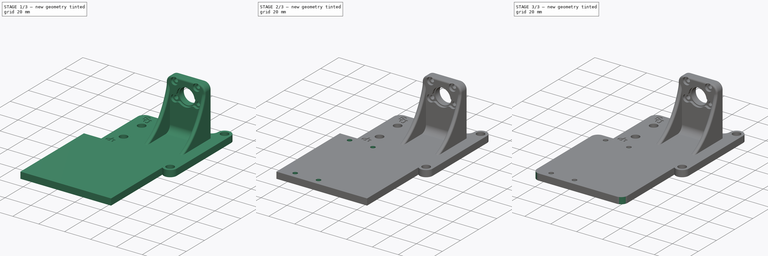
[diagram: build sequence overview — one tinted view per stage of 3, left to right]
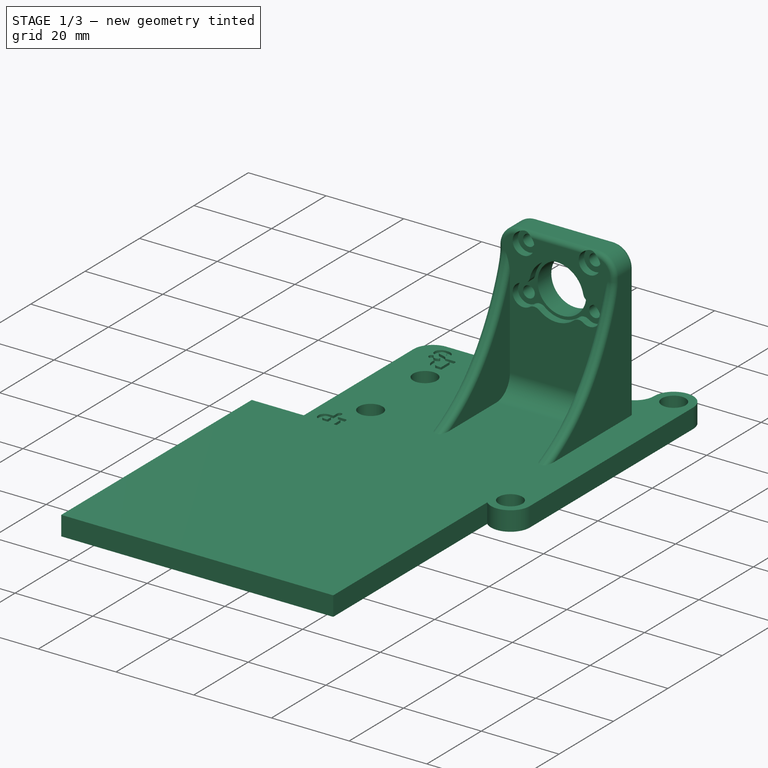
[diagram: stage 1 of 3 — iso view after this stage's code; geometry added in this stage tinted green]
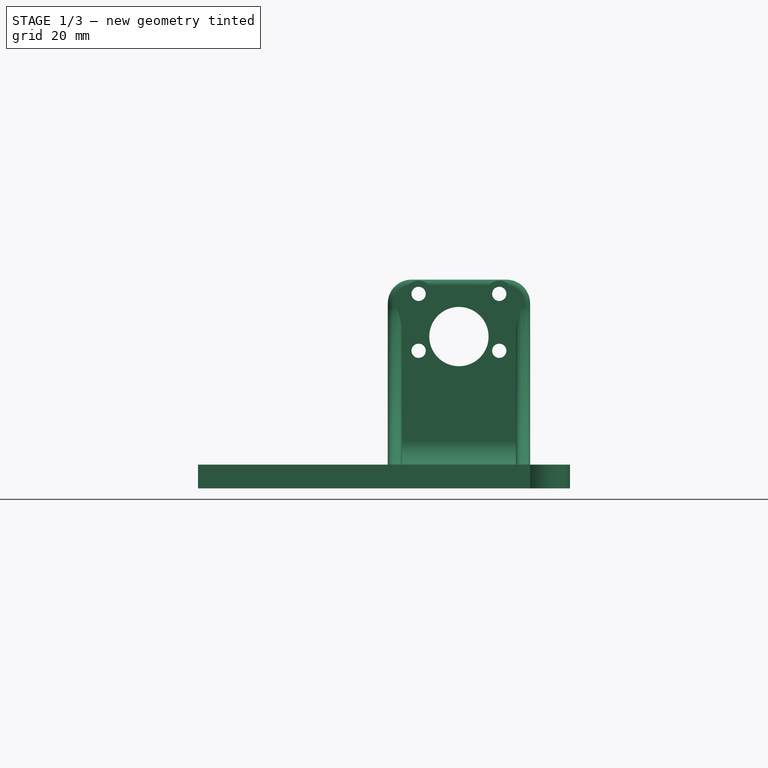
[diagram: stage 1 of 3 — front view after this stage's code; geometry added in this stage tinted green]
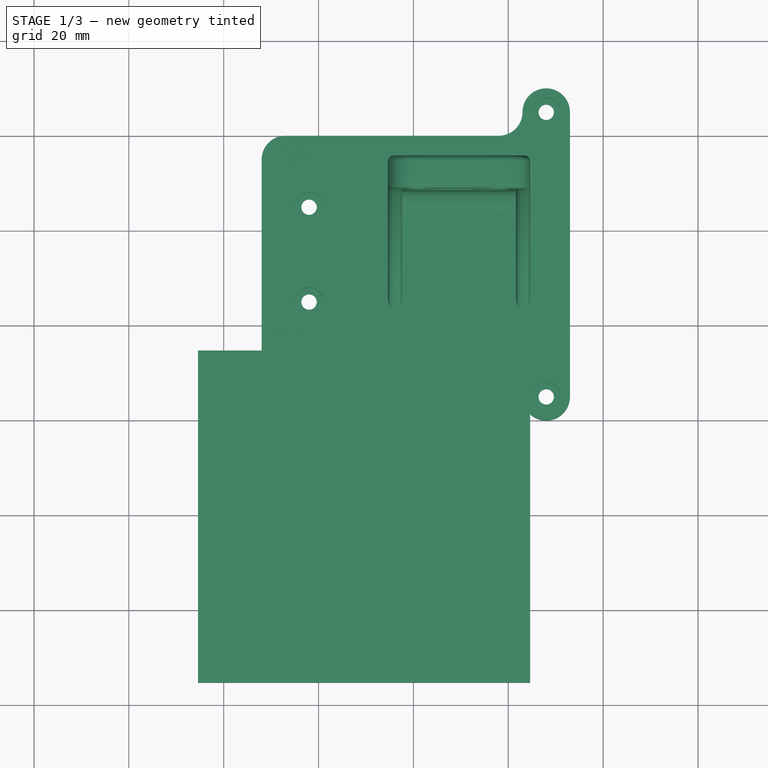
[diagram: stage 1 of 3 — top view after this stage's code; geometry added in this stage tinted green]
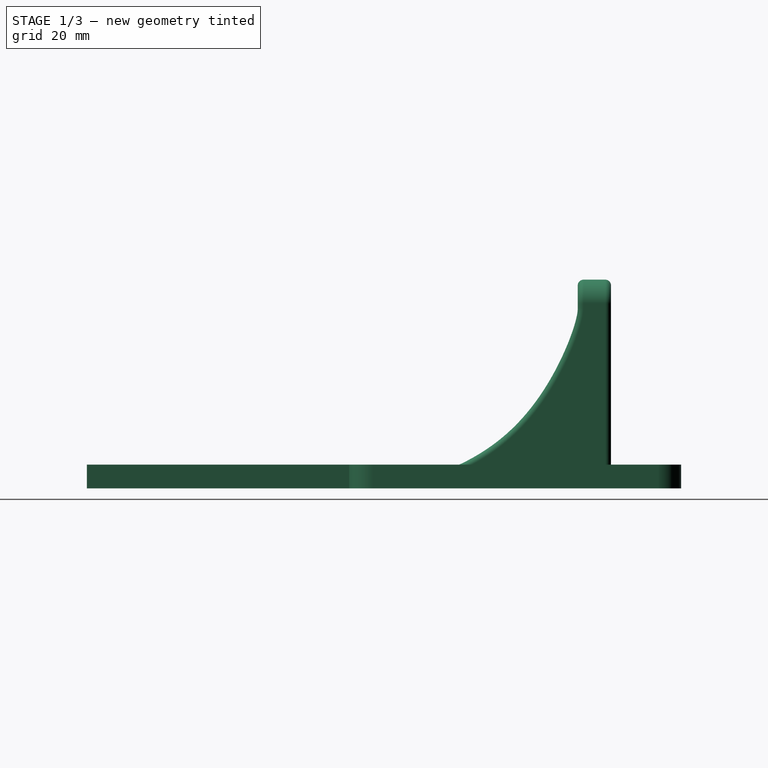
[diagram: stage 1 of 3 — right view after this stage's code; geometry added in this stage tinted green]
FCSTD DOCUMENT  (FreeCAD 0.19R)
Label: direct_bracket
License: All rights reserved
LicenseURL: http://en.wikipedia.org/wiki/All_rights_reserved
objects: Sketcher::SketchObject×3, PartDesign::Pocket×2, Part::Feature×1, PartDesign::FeatureBase×1, PartDesign::Pad×1, PartDesign::Fillet×1, PartDesign::Body×1
note: 14 computed .brp shape members not serialized (recipe doc carries the construction recipe); baked Part::Feature solids carry a one-line shape summary decoded from their .brp

FEATURE [Part::Feature] LPA_XCarriage_StockHotendSupport001001_solid  label="LPA_XCarriage_StockHotendSupport001001 (Solid)"
  shape: bbox 65 x 69.99 x 44 mm, 13961 faces (baked)
FEATURE [PartDesign::FeatureBase] BaseFeature
  BaseFeature = -> LPA_XCarriage_StockHotendSupport001001_solid
FEATURE [Sketcher::SketchObject] Sketch
  ExternalGeometry = -> [BaseFeature]
  FullyConstrained = true
  MapMode = 5
  Placement = pos=(0,0,135.188) rot=(0,0,1;0rad)
  Support = -> [BaseFeature]
  sketch-geometry (4):
    g0: LineSegment StartX=-405.404 StartY=254.71 StartZ=0 EndX=-335.404 EndY=254.71 EndZ=0
    g1: LineSegment StartX=-335.404 StartY=254.71 StartZ=0 EndX=-335.404 EndY=184.71 EndZ=0
    g2: LineSegment StartX=-335.404 StartY=184.71 StartZ=0 EndX=-405.404 EndY=184.71 EndZ=0
    g3: LineSegment StartX=-405.404 StartY=184.71 StartZ=0 EndX=-405.404 EndY=254.71 EndZ=0
  constraints (13):
    c: Coincident(g1,g2)
    c: Coincident(g2,g3)
    c: Coincident(g3,g0)
    c: Horizontal(g0)
    c: Horizontal(g2)
    c: Vertical(g1)
    c: Vertical(g3)
    c: DistanceX(g-4,g-4) = 24
    c: Coincident(g0,g1)
    c: DistanceX(g-4,g0) = 3
    c: DistanceY(g2,g0) = 70
    c: DistanceX(g2,g1) = 70
    c: DistanceY(g0,g-4) = 28.5
FEATURE [PartDesign::Pad] Pad
  BaseFeature = -> BaseFeature
  Direction = (1,1,1)
  Length = 5
  Length2 = 100
  Profile = -> Sketch
  Reversed = true
  Type = 0
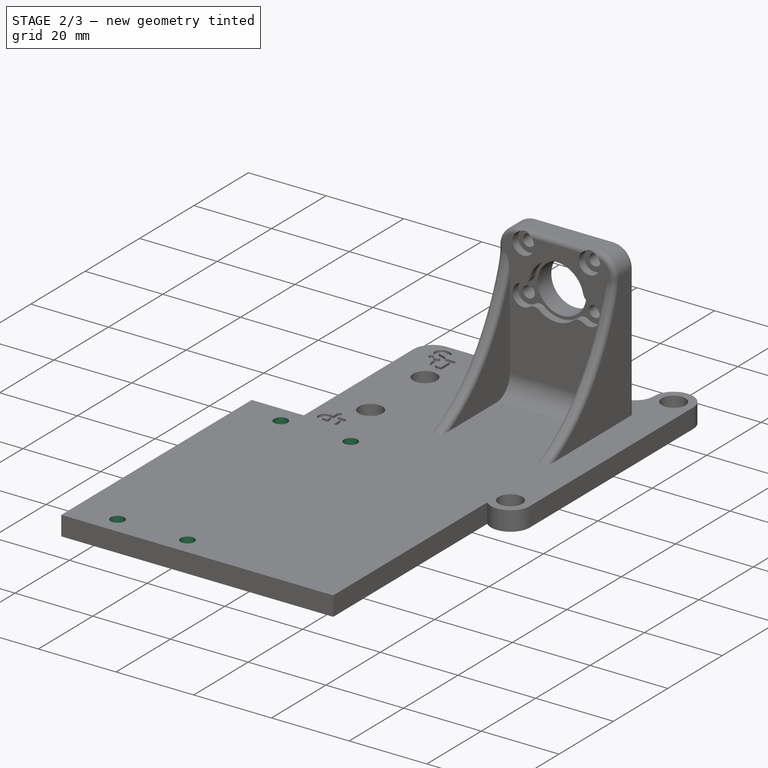
[diagram: stage 2 of 3 — iso view after this stage's code; geometry added in this stage tinted green]
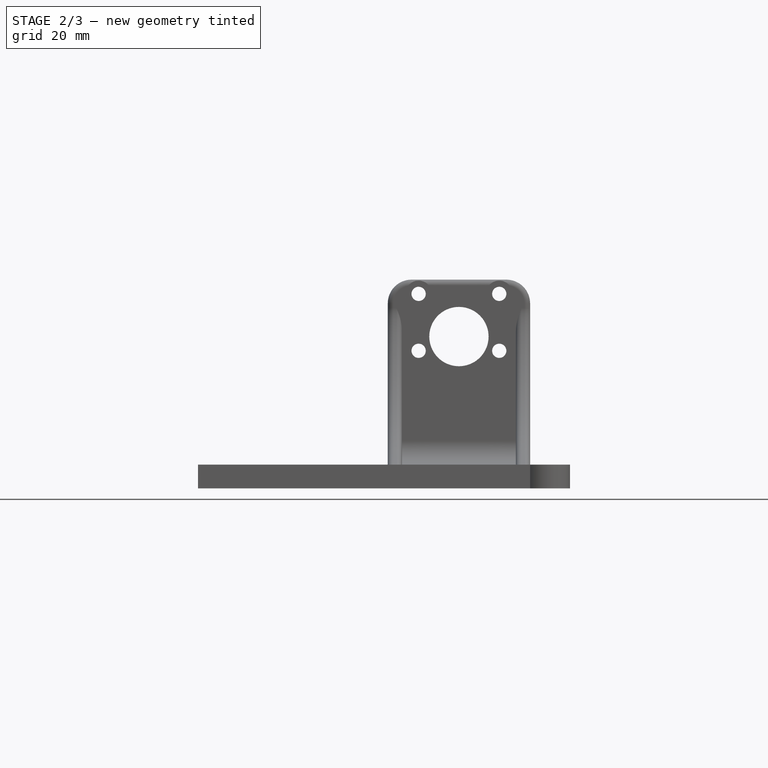
[diagram: stage 2 of 3 — front view after this stage's code; geometry added in this stage tinted green]
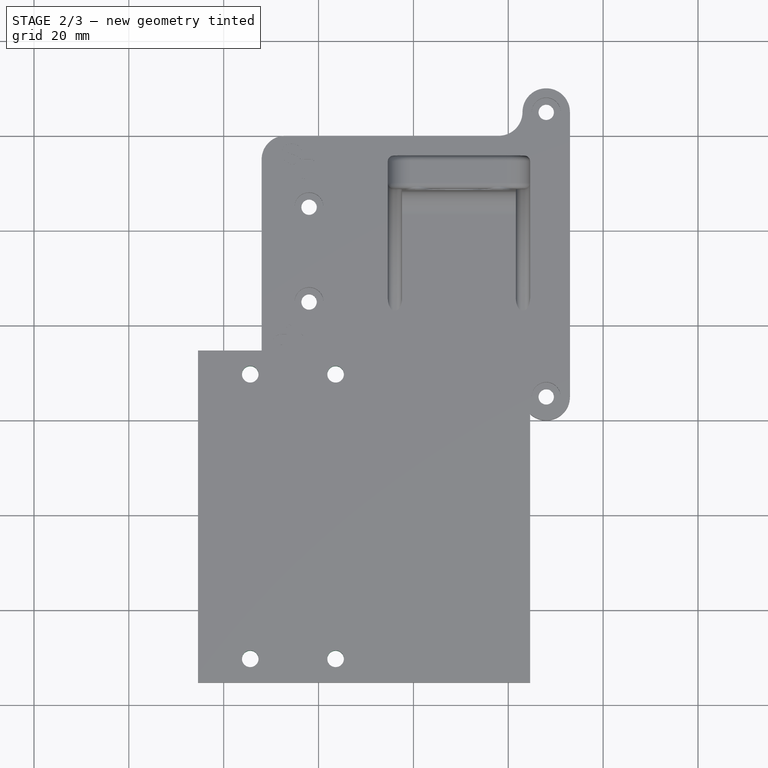
[diagram: stage 2 of 3 — top view after this stage's code; geometry added in this stage tinted green]
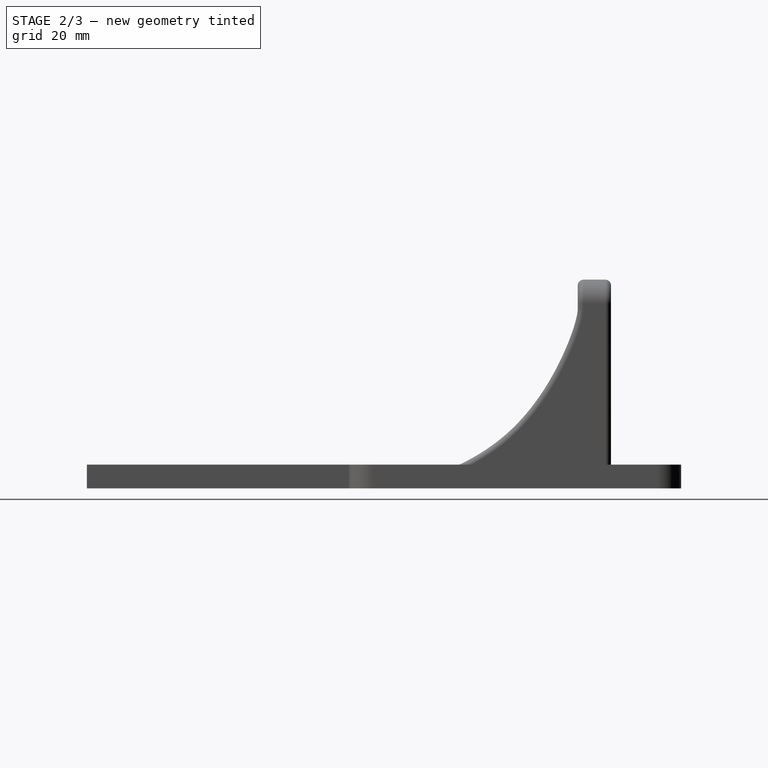
[diagram: stage 2 of 3 — right view after this stage's code; geometry added in this stage tinted green]
FEATURE [Sketcher::SketchObject] Sketch001
  ExternalGeometry = -> [Pad]
  FullyConstrained = true
  MapMode = 5
  Placement = pos=(0,0,135.188) rot=(0,0,1;0rad)
  Support = -> [Pad]
  sketch-geometry (4):
    g0: Circle CenterX=-394.404 CenterY=249.71 CenterZ=0 NormalX=0 NormalY=0 NormalZ=1 AngleXU=0 Radius=1.75
    g1: Circle CenterX=-376.404 CenterY=249.71 CenterZ=0 NormalX=0 NormalY=0 NormalZ=1 AngleXU=0 Radius=1.75
    g2: Circle CenterX=-394.404 CenterY=189.71 CenterZ=0 NormalX=0 NormalY=0 NormalZ=1 AngleXU=0 Radius=1.75
    g3: Circle CenterX=-376.404 CenterY=189.71 CenterZ=0 NormalX=0 NormalY=0 NormalZ=1 AngleXU=0 Radius=1.75
  constraints (13):
    c: DistanceX(g-6,g-6) = 24
    c: Equal(g0,g1)
    c: Equal(g1,g3)
    c: Equal(g3,g2)
    c: DistanceX(g1,g-6) = 14
    c: DistanceX(g3,g-6) = 14
    c: DistanceX(g0,g1) = 18
    c: DistanceX(g2,g3) = 18
    c: DistanceY(g0,g-3) = 5
    c: DistanceY(g1,g-3) = 5
    c: DistanceY(g2,g0) = 60
    c: DistanceY(g3,g1) = 60
    c: Diameter(g3) = 3.5
FEATURE [PartDesign::Pocket] Pocket
  BaseFeature = -> Pad
  Length = 5
  Length2 = 100
  Profile = -> Sketch001
  Type = 1
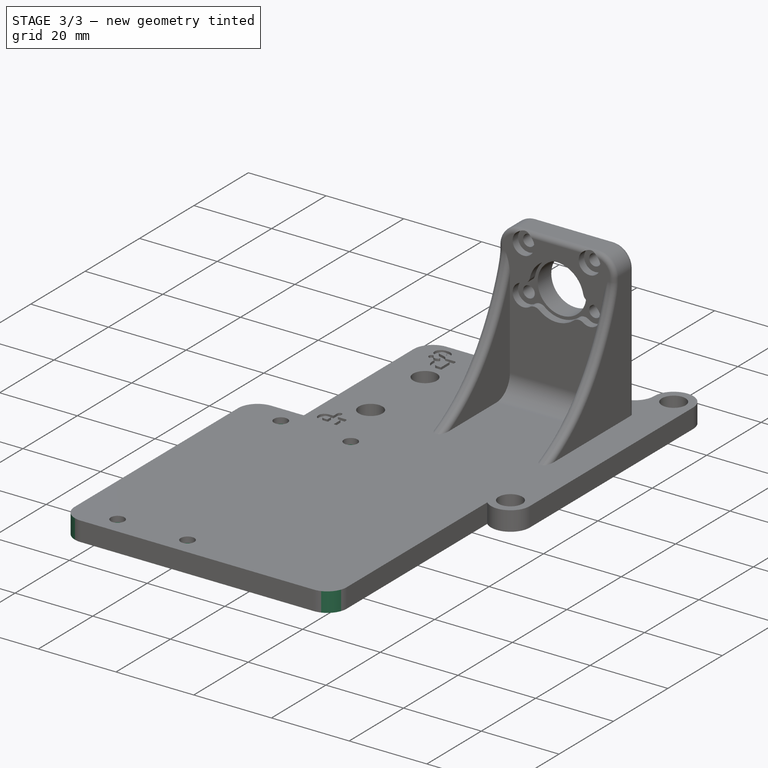
[diagram: stage 3 of 3 — iso view after this stage's code; geometry added in this stage tinted green]
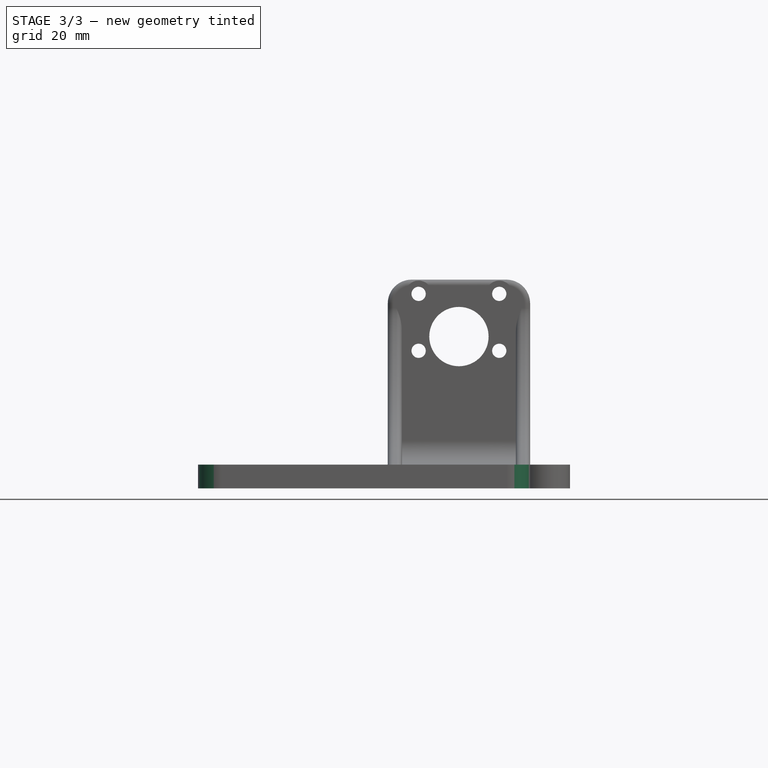
[diagram: stage 3 of 3 — front view after this stage's code; geometry added in this stage tinted green]
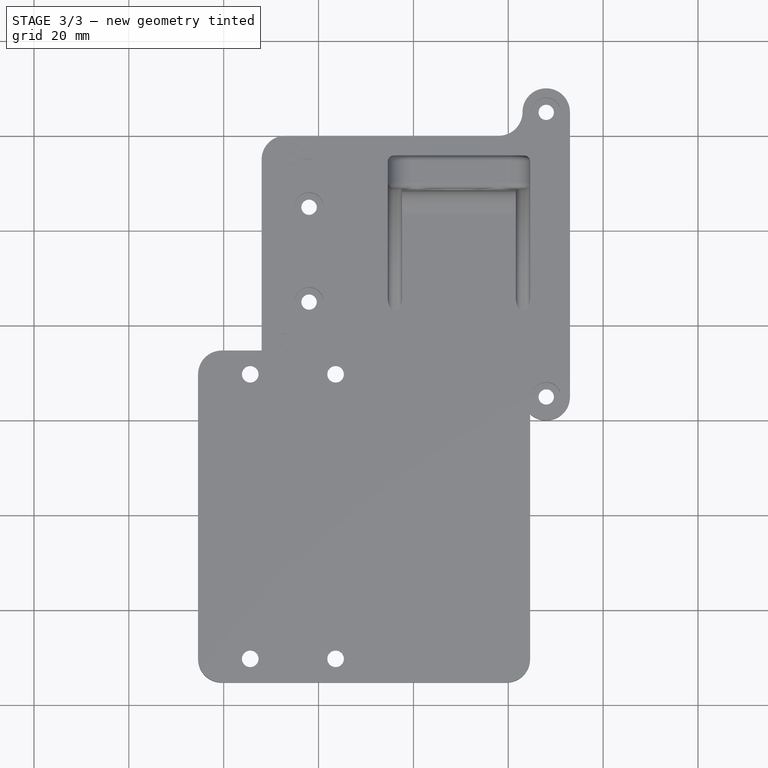
[diagram: stage 3 of 3 — top view after this stage's code; geometry added in this stage tinted green]
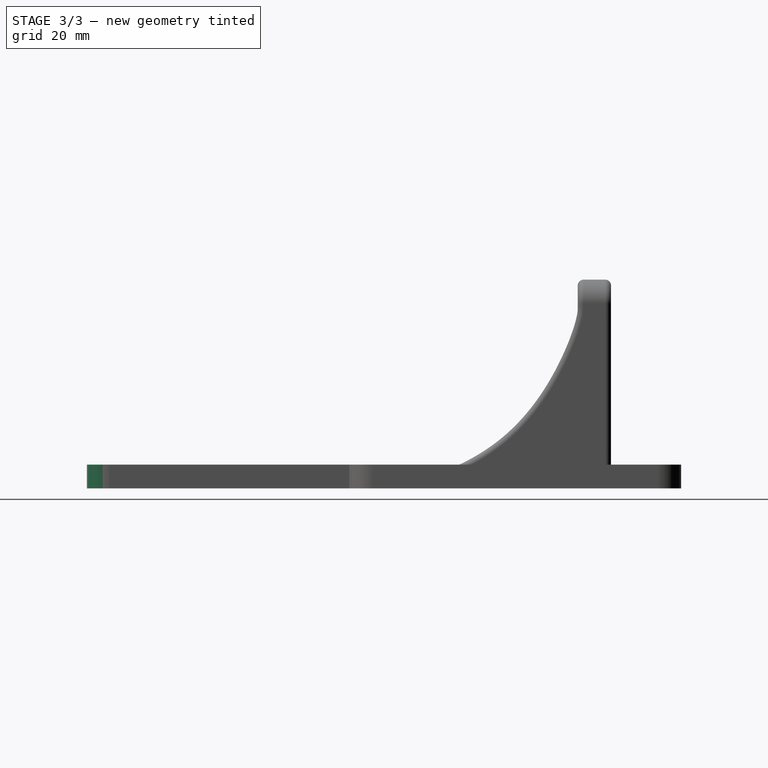
[diagram: stage 3 of 3 — right view after this stage's code; geometry added in this stage tinted green]
FEATURE [Sketcher::SketchObject] Sketch002
  ExternalGeometry = -> [Pocket]
  FullyConstrained = true
  MapMode = 5
  Placement = pos=(0,0,130.188) rot=(1,0,0;3.14159rad)
  Support = -> [Pocket]
  sketch-geometry (28):
    g0: LineSegment StartX=-391.504 StartY=-191.384 StartZ=0 EndX=-391.504 EndY=-188.036 EndZ=0
    g1: LineSegment StartX=-391.504 StartY=-188.036 StartZ=0 EndX=-394.404 EndY=-186.361 EndZ=0
    g2: LineSegment StartX=-394.404 StartY=-186.361 StartZ=0 EndX=-397.304 EndY=-188.036 EndZ=0
    g3: LineSegment StartX=-397.304 StartY=-188.036 StartZ=0 EndX=-397.304 EndY=-191.384 EndZ=0
    g4: LineSegment StartX=-397.304 StartY=-191.384 StartZ=0 EndX=-394.404 EndY=-193.059 EndZ=0
    g5: LineSegment StartX=-394.404 StartY=-193.059 StartZ=0 EndX=-391.504 EndY=-191.384 EndZ=0
    g6: Circle CenterX=-394.404 CenterY=-189.71 CenterZ=0 NormalX=0 NormalY=0 NormalZ=1 AngleXU=0 Radius=3.34863
    g7: LineSegment StartX=-373.504 StartY=-191.384 StartZ=0 EndX=-373.504 EndY=-188.036 EndZ=0
    g8: LineSegment StartX=-373.504 StartY=-188.036 StartZ=0 EndX=-376.404 EndY=-186.361 EndZ=0
    g9: LineSegment StartX=-376.404 StartY=-186.361 StartZ=0 EndX=-379.304 EndY=-188.036 EndZ=0
    g10: LineSegment StartX=-379.304 StartY=-188.036 StartZ=0 EndX=-379.304 EndY=-191.384 EndZ=0
    g11: LineSegment StartX=-379.304 StartY=-191.384 StartZ=0 EndX=-376.404 EndY=-193.059 EndZ=0
    g12: LineSegment StartX=-376.404 StartY=-193.059 StartZ=0 EndX=-373.504 EndY=-191.384 EndZ=0
    g13: Circle CenterX=-376.404 CenterY=-189.71 CenterZ=0 NormalX=0 NormalY=0 NormalZ=1 AngleXU=0 Radius=3.34863
    g14: LineSegment StartX=-391.504 StartY=-251.384 StartZ=0 EndX=-391.504 EndY=-248.036 EndZ=0
    g15: LineSegment StartX=-391.504 StartY=-248.036 StartZ=0 EndX=-394.404 EndY=-246.361 EndZ=0
    g16: LineSegment StartX=-394.404 StartY=-246.361 StartZ=0 EndX=-397.304 EndY=-248.036 EndZ=0
    g17: LineSegment StartX=-397.304 StartY=-248.036 StartZ=0 EndX=-397.304 EndY=-251.384 EndZ=0
    g18: LineSegment StartX=-397.304 StartY=-251.384 StartZ=0 EndX=-394.404 EndY=-253.059 EndZ=0
    g19: LineSegment StartX=-394.404 StartY=-253.059 StartZ=0 EndX=-391.504 EndY=-251.384 EndZ=0
    g20: Circle CenterX=-394.404 CenterY=-249.71 CenterZ=0 NormalX=0 NormalY=0 NormalZ=1 AngleXU=0 Radius=3.34863
    g21: LineSegment StartX=-373.504 StartY=-251.384 StartZ=0 EndX=-373.504 EndY=-248.036 EndZ=0
    g22: LineSegment StartX=-373.504 StartY=-248.036 StartZ=0 EndX=-376.404 EndY=-246.361 EndZ=0
    g23: LineSegment StartX=-376.404 StartY=-246.361 StartZ=0 EndX=-379.304 EndY=-248.036 EndZ=0
    g24: LineSegment StartX=-379.304 StartY=-248.036 StartZ=0 EndX=-379.304 EndY=-251.384 EndZ=0
    g25: LineSegment StartX=-379.304 StartY=-251.384 StartZ=0 EndX=-376.404 EndY=-253.059 EndZ=0
    g26: LineSegment StartX=-376.404 StartY=-253.059 StartZ=0 EndX=-373.504 EndY=-251.384 EndZ=0
    g27: Circle CenterX=-376.404 CenterY=-249.71 CenterZ=0 NormalX=0 NormalY=0 NormalZ=1 AngleXU=0 Radius=3.34863
  constraints (64):
    c: Coincident(g0,g1)
    c: Coincident(g1,g2)
    c: Coincident(g2,g3)
    c: Coincident(g3,g4)
    c: Coincident(g4,g5)
    c: Coincident(g5,g0)
    c: Equal(g0, g1-g5) x5
    c: PointOnObject(g0,g6)
    c: PointOnObject(g1,g6)
    c: PointOnObject(g2,g6)
    c: PointOnObject(g3,g6)
    c: PointOnObject(g4,g6)
    c: PointOnObject(g5,g6)
    c: Coincident(g7,g8)
    c: Coincident(g8,g9)
    c: Coincident(g9,g10)
    c: Coincident(g10,g11)
    c: Coincident(g11,g12)
    c: Coincident(g12,g7)
    c: Equal(g7, g8-g12) x5
    c: PointOnObject(g7,g13)
    c: PointOnObject(g8,g13)
    c: PointOnObject(g9,g13)
    c: PointOnObject(g10,g13)
    c: PointOnObject(g11,g13)
    c: PointOnObject(g12,g13)
    c: Coincident(g14,g15)
    c: Coincident(g15,g16)
    c: Coincident(g16,g17)
    c: Coincident(g17,g18)
    c: Coincident(g18,g19)
    c: Coincident(g19,g14)
    c: Equal(g14, g15-g19) x5
    c: PointOnObject(g14,g20)
    c: PointOnObject(g15,g20)
    c: PointOnObject(g16,g20)
    c: PointOnObject(g17,g20)
    c: PointOnObject(g18,g20)
    c: PointOnObject(g19,g20)
    c: Coincident(g21,g22)
    c: Coincident(g22,g23)
    c: Coincident(g23,g24)
    c: Coincident(g24,g25)
    c: Coincident(g25,g26)
    c: Coincident(g26,g21)
    c: Equal(g21, g22-g26) x5
    c: PointOnObject(g21,g27)
    c: PointOnObject(g22,g27)
    c: PointOnObject(g23,g27)
    c: PointOnObject(g24,g27)
    c: PointOnObject(g25,g27)
    c: PointOnObject(g26,g27)
    c: Vertical(g21)
    c: Equal(g21,g14)
    c: Equal(g14,g0)
    c: Equal(g0,g7)
    c: Vertical(g0)
    c: Vertical(g7)
    c: Vertical(g14)
    c: DistanceX(g23,g21) = 5.8
    c: Coincident(g27,g-4)
    c: Coincident(g20,g-3)
    c: Coincident(g13,g-5)
    c: Coincident(g6,g-6)
FEATURE [PartDesign::Pocket] Pocket001
  BaseFeature = -> Pocket
  Length = 3.5
  Length2 = 100
  Profile = -> Sketch002
  Type = 0
FEATURE [PartDesign::Fillet] Fillet
  Base = -> Pocket001 [Edge3809,Edge5940,Edge3765]
  BaseFeature = -> Pocket001
  Radius = 5
  SupportTransform = false
FEATURE [PartDesign::Body] Body
  BaseFeature = -> LPA_XCarriage_StockHotendSupport001001_solid
  Group = -> [BaseFeature,Sketch,Pad,Sketch001,Pocket,Sketch002,Pocket001,Fillet]
  Origin = -> Origin
  Tip = -> Fillet
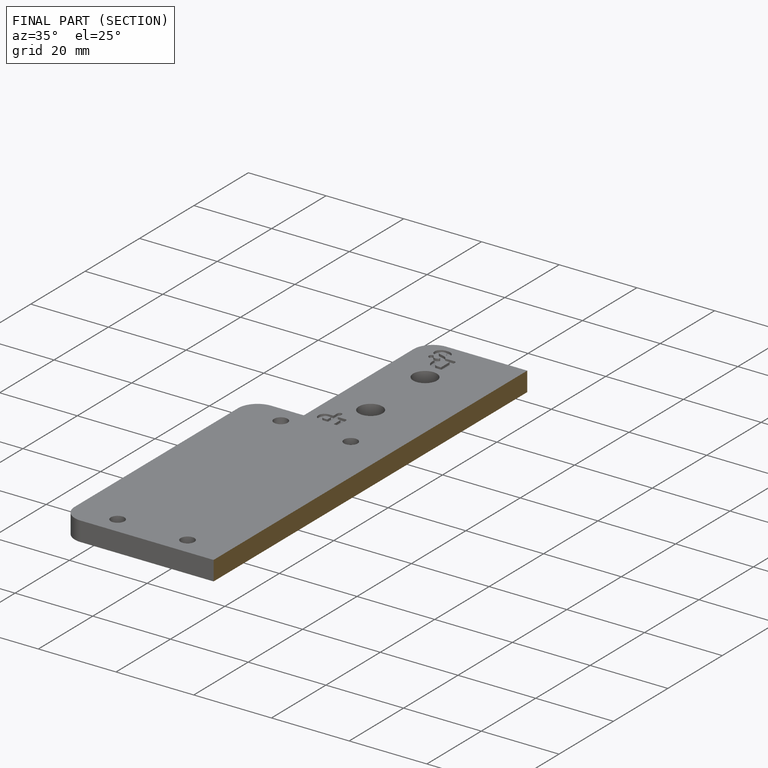
[diagram: finished part — half-section view (interior)]
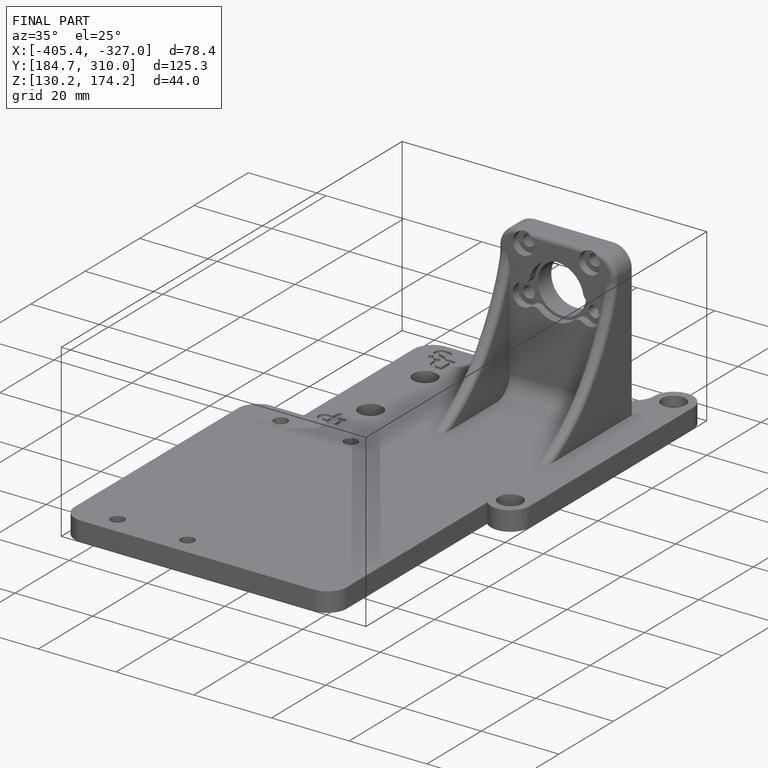
[diagram: finished part — iso view with bounding-box wireframe]
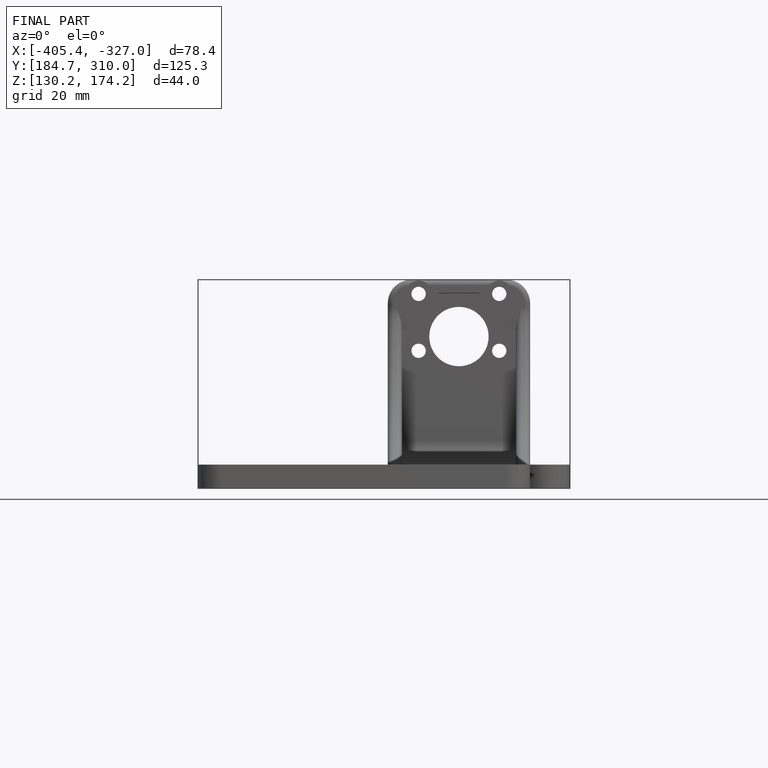
[diagram: finished part — front view with bounding-box wireframe]
